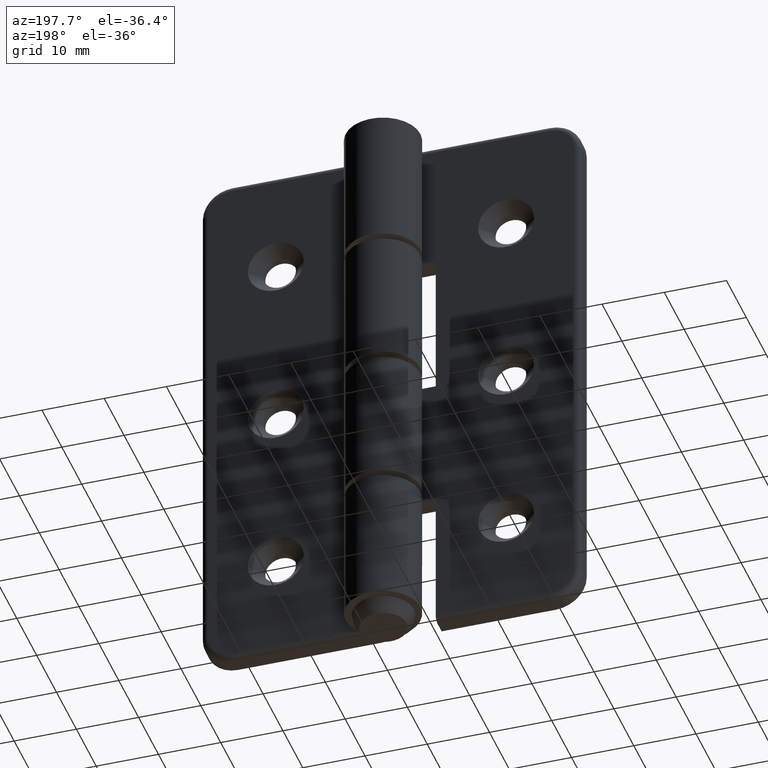
[diagram: clean part render]
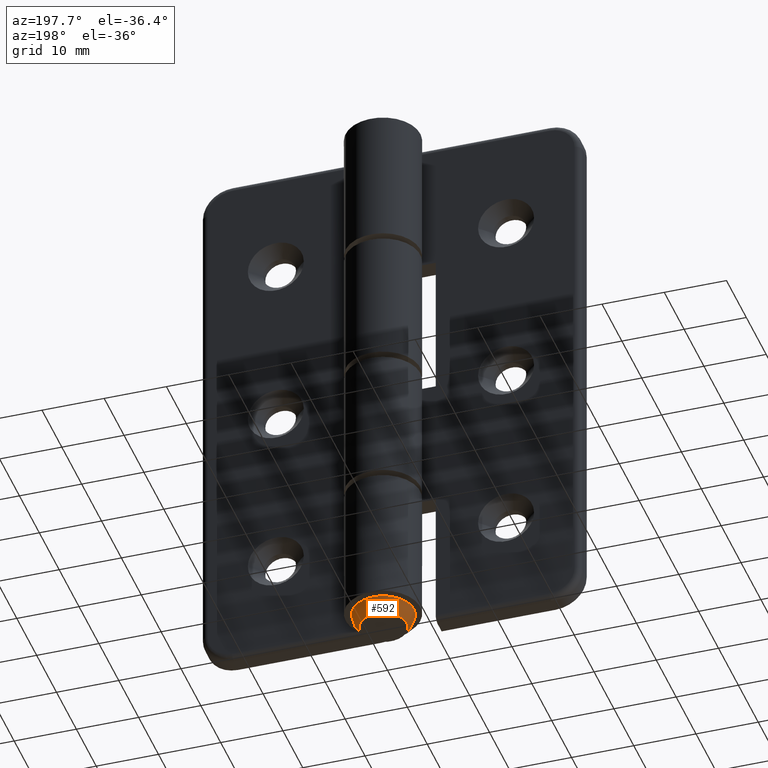
[diagram: same view with one face highlighted and labeled with its STEP entity id]
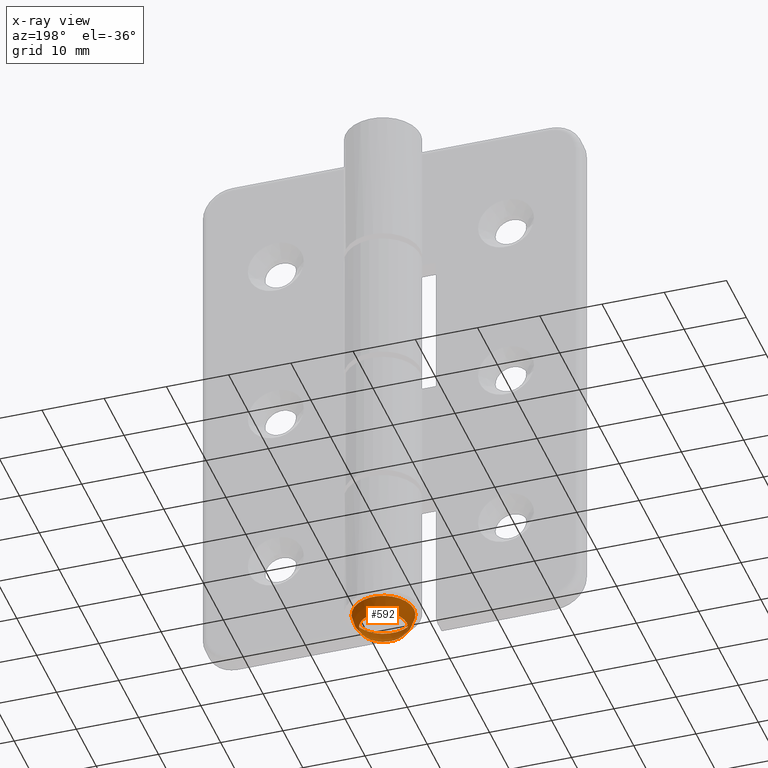
[diagram: x-ray of the same camera — body ghosted, the highlighted face saturated]
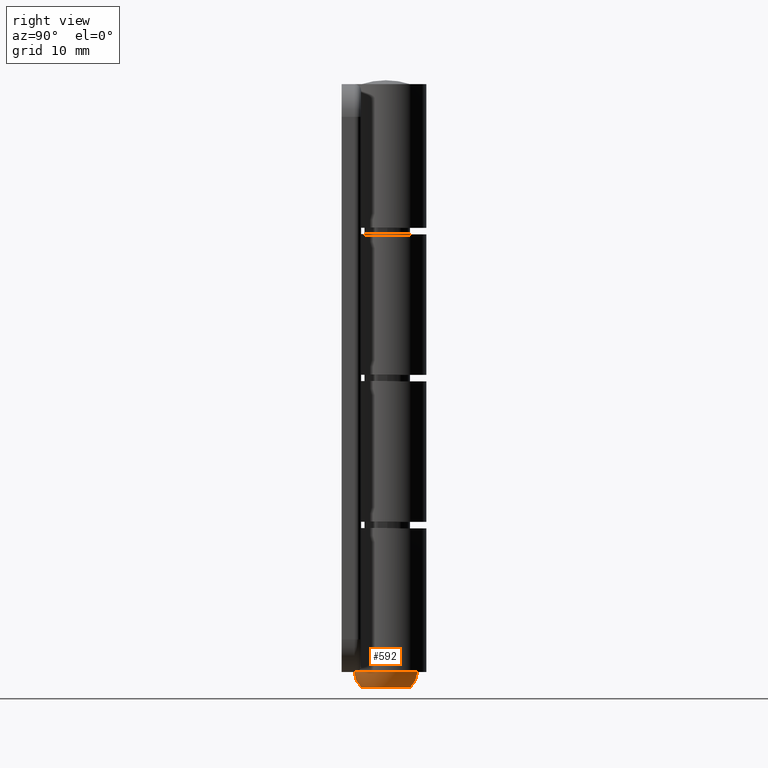
[diagram: same view with one face highlighted and labeled with its STEP entity id]
A machine part, auxiliary view. The second image highlights one B-rep face of the part: STEP entity #592.
The next image is the same camera in x-ray: the body ghosted, the highlighted face saturated — about 0% of this face is hidden behind the body in this view.
A second angle (right view) of the same face is appended — the face is thin or edge-on in the first view.
In plain terms, the highlighted face is a freeform B-spline surface patch.
Its self-contained STEP definition (entity closure, byte-faithful):
#24=(
BOUNDED_CURVE()
B_SPLINE_CURVE(2,(#1060,#1061,#1062),.UNSPECIFIED.,.F.,.F.)
B_SPLINE_CURVE_WITH_KNOTS((3,3),(0.112648424039473,0.78103651293205),
 .UNSPECIFIED.)
CURVE()
GEOMETRIC_REPRESENTATION_ITEM()
RATIONAL_B_SPLINE_CURVE((1.,0.944674976214682,1.))
REPRESENTATION_ITEM('')
);
#25=(
BOUNDED_SURFACE()
B_SPLINE_SURFACE(2,2,((#1033,#1034,#1035,#1036,#1037,#1038,#1039,#1040,
#1041),(#1042,#1043,#1044,#1045,#1046,#1047,#1048,#1049,#1050),(#1051,#1052,
#1053,#1054,#1055,#1056,#1057,#1058,#1059)),.UNSPECIFIED.,.F.,.T.,.F.)
B_SPLINE_SURFACE_WITH_KNOTS((3,3),(3,2,2,2,3),(-0.78103651293205,-0.112648424039473),
(-3.14159265358979,-1.5707963267949,0.,1.5707963267949,3.14159265358979),
 .UNSPECIFIED.)
GEOMETRIC_REPRESENTATION_ITEM()
RATIONAL_B_SPLINE_SURFACE(((1.,0.707106781186548,1.,0.707106781186548,1.,
0.707106781186548,1.,0.707106781186548,1.),(0.944674976214682,0.667986081698642,
0.944674976214682,0.667986081698642,0.944674976214682,0.667986081698642,
0.944674976214682,0.667986081698642,0.944674976214682),(1.,0.707106781186548,
1.,0.707106781186548,1.,0.707106781186548,1.,0.707106781186548,1.)))
REPRESENTATION_ITEM('')
SURFACE()
);
#183=FACE_OUTER_BOUND('',#237,.T.);
#237=EDGE_LOOP('',(#547,#548,#549,#550,#551,#552));
#275=CIRCLE('',#662,4.9);
#276=CIRCLE('',#663,4.9);
#278=CIRCLE('',#666,3.75);
#279=CIRCLE('',#667,3.75);
#329=VERTEX_POINT('',#1022);
#330=VERTEX_POINT('',#1023);
#332=VERTEX_POINT('',#1029);
#333=VERTEX_POINT('',#1030);
#402=EDGE_CURVE('',#329,#330,#275,.T.);
#403=EDGE_CURVE('',#330,#329,#276,.T.);
#405=EDGE_CURVE('',#332,#333,#278,.T.);
#406=EDGE_CURVE('',#333,#332,#279,.T.);
#407=EDGE_CURVE('',#330,#333,#24,.T.);
#547=ORIENTED_EDGE('',*,*,#402,.F.);
#548=ORIENTED_EDGE('',*,*,#403,.F.);
#549=ORIENTED_EDGE('',*,*,#407,.T.);
#550=ORIENTED_EDGE('',*,*,#406,.T.);
#551=ORIENTED_EDGE('',*,*,#405,.T.);
#552=ORIENTED_EDGE('',*,*,#407,.F.);
#592=ADVANCED_FACE('',(#183),#25,.F.);
#662=AXIS2_PLACEMENT_3D('',#1024,#838,#839);
#663=AXIS2_PLACEMENT_3D('',#1025,#840,#841);
#666=AXIS2_PLACEMENT_3D('',#1031,#846,#847);
#667=AXIS2_PLACEMENT_3D('',#1032,#848,#849);
#838=DIRECTION('center_axis',(0.,0.,1.));
#839=DIRECTION('ref_axis',(1.,0.,0.));
#840=DIRECTION('center_axis',(0.,0.,1.));
#841=DIRECTION('ref_axis',(1.,0.,0.));
#846=DIRECTION('center_axis',(0.,0.,1.));
#847=DIRECTION('ref_axis',(1.,0.,0.));
#848=DIRECTION('center_axis',(0.,0.,1.));
#849=DIRECTION('ref_axis',(1.,0.,0.));
#1022=CARTESIAN_POINT('',(16.7794260789724,3.5,-90.));
#1023=CARTESIAN_POINT('',(6.97942607897237,3.5,-90.));
#1024=CARTESIAN_POINT('Origin',(11.8794260789724,3.5,-90.));
#1025=CARTESIAN_POINT('Origin',(11.8794260789724,3.5,-90.));
#1029=CARTESIAN_POINT('',(15.6294260789724,3.5,-92.4));
#1030=CARTESIAN_POINT('',(8.12942607897236,3.5,-92.4));
#1031=CARTESIAN_POINT('Origin',(11.8794260789724,3.5,-92.4));
#1032=CARTESIAN_POINT('Origin',(11.8794260789724,3.5,-92.4));
#1033=CARTESIAN_POINT('Ctrl Pts',(8.12942607897236,3.5,-92.4));
#1034=CARTESIAN_POINT('Ctrl Pts',(8.12942607897237,-0.250000000000005,-92.4));
#1035=CARTESIAN_POINT('Ctrl Pts',(11.8794260789724,-0.250000000000006,-92.4));
#1036=CARTESIAN_POINT('Ctrl Pts',(15.6294260789724,-0.250000000000005,-92.4));
#1037=CARTESIAN_POINT('Ctrl Pts',(15.6294260789724,3.5,-92.4));
#1038=CARTESIAN_POINT('Ctrl Pts',(15.6294260789724,7.25000000000001,-92.4));
#1039=CARTESIAN_POINT('Ctrl Pts',(11.8794260789724,7.25000000000001,-92.4));
#1040=CARTESIAN_POINT('Ctrl Pts',(8.12942607897237,7.25000000000001,-92.4));
#1041=CARTESIAN_POINT('Ctrl Pts',(8.12942607897236,3.5,-92.4));
#1042=CARTESIAN_POINT('Ctrl Pts',(7.13776479075883,3.5,-91.3996502006023));
#1043=CARTESIAN_POINT('Ctrl Pts',(7.13776479075884,-1.24166128821354,-91.3996502006023));
#1044=CARTESIAN_POINT('Ctrl Pts',(11.8794260789724,-1.24166128821354,-91.3996502006023));
#1045=CARTESIAN_POINT('Ctrl Pts',(16.6210873671859,-1.24166128821354,-91.3996502006023));
#1046=CARTESIAN_POINT('Ctrl Pts',(16.6210873671859,3.5,-91.3996502006023));
#1047=CARTESIAN_POINT('Ctrl Pts',(16.6210873671859,8.24166128821354,-91.3996502006023));
#1048=CARTESIAN_POINT('Ctrl Pts',(11.8794260789724,8.24166128821354,-91.3996502006023));
#1049=CARTESIAN_POINT('Ctrl Pts',(7.13776479075884,8.24166128821354,-91.3996502006023));
#1050=CARTESIAN_POINT('Ctrl Pts',(7.13776479075883,3.5,-91.3996502006023));
#1051=CARTESIAN_POINT('Ctrl Pts',(6.97942607897237,3.5,-90.));
#1052=CARTESIAN_POINT('Ctrl Pts',(6.97942607897237,-1.4,-90.));
#1053=CARTESIAN_POINT('Ctrl Pts',(11.8794260789724,-1.4,-90.));
#1054=CARTESIAN_POINT('Ctrl Pts',(16.7794260789724,-1.4,-90.));
#1055=CARTESIAN_POINT('Ctrl Pts',(16.7794260789724,3.5,-90.));
#1056=CARTESIAN_POINT('Ctrl Pts',(16.7794260789724,8.4,-90.));
#1057=CARTESIAN_POINT('Ctrl Pts',(11.8794260789724,8.4,-90.));
#1058=CARTESIAN_POINT('Ctrl Pts',(6.97942607897237,8.4,-90.));
#1059=CARTESIAN_POINT('Ctrl Pts',(6.97942607897237,3.5,-90.));
#1060=CARTESIAN_POINT('Ctrl Pts',(6.97942607897237,3.5,-90.));
#1061=CARTESIAN_POINT('Ctrl Pts',(7.13776479075884,3.5,-91.3996502006023));
#1062=CARTESIAN_POINT('Ctrl Pts',(8.12942607897236,3.5,-92.4));